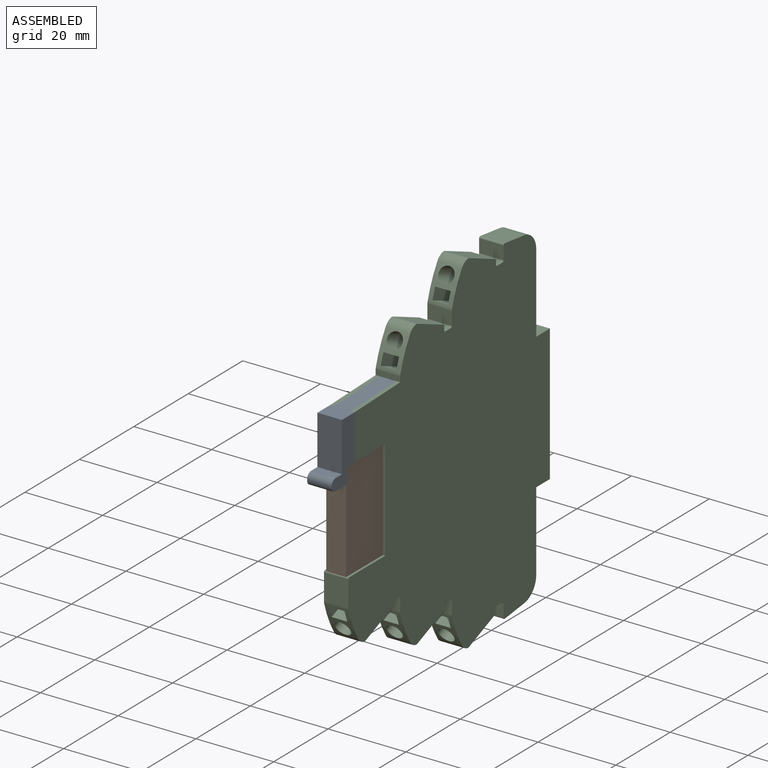
[diagram: assembled view]
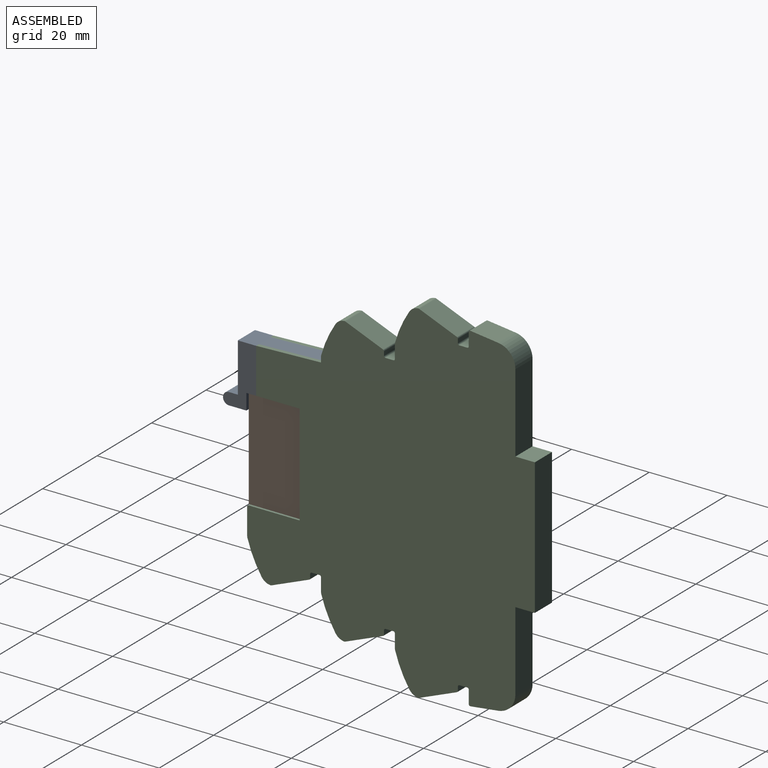
[diagram: assembled view, second angle]
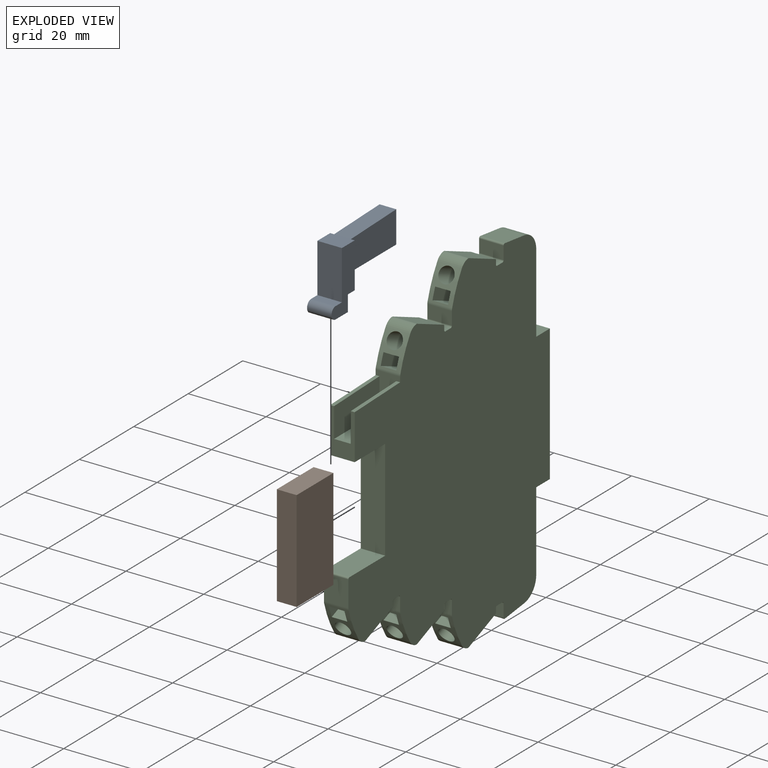
[diagram: exploded view]
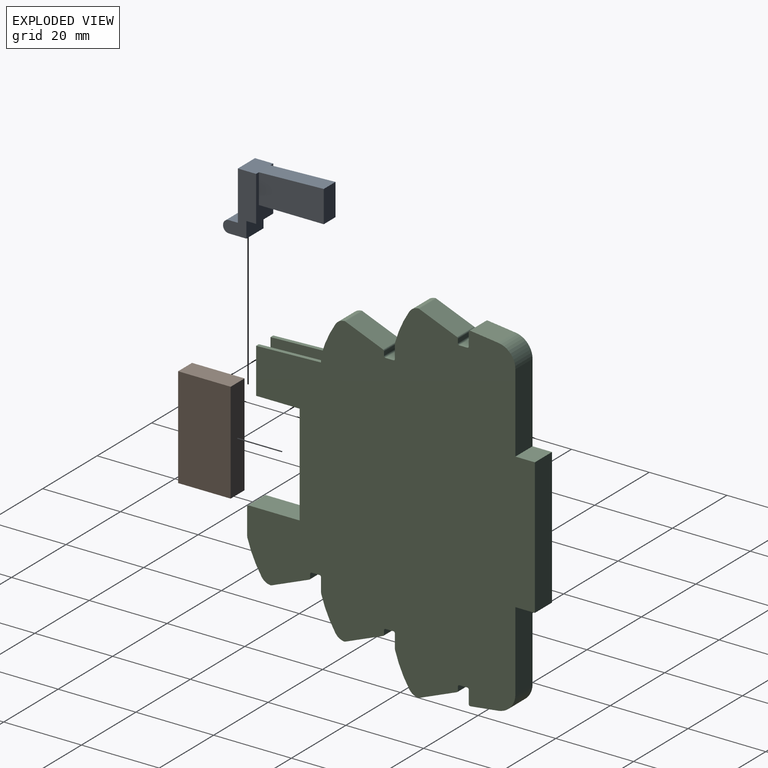
[diagram: exploded view, second angle]
ASSEMBLY  parts=3 mates=2
PART A: 17 faces, bbox 6.3x25.2x16.3 mm
  f0: plane 12.62x6.3mm, normal (0,-1,0), area 79.5mm2, adj f6,f7,f9,f13
  f1: plane 16.7x4.3mm, normal (0,-0.03,1), area 71.9mm2, adj f2,f3,f4,f6
  f2: plane 16.7x8.2mm, normal (1,0,0), area 132.1mm2, adj f1,f3,f5,f10
  f3: plane 8.2x4.3mm, normal (0,1,0), area 35.3mm2, adj f1,f2,f4,f5
  f4: plane 16.7x8.2mm, normal (-1,0,0), area 132.1mm2, adj f1,f3,f5,f10
  f5: plane 16.7x4.3mm, normal (0,0,-1), area 71.8mm2, adj f2,f3,f4,f10
  f6: plane 6.3x4.7mm, normal (0,0,1), area 29.6mm2, adj f0,f1,f7,f9,f10
  f7: plane 15.72x8.5mm, normal (-1,0,0), area 74.4mm2, adj f0,f6,f8,f10,f11,f12,f13,f14
  f8: plane 6.3x2.5mm, normal (0,0,-1), area 15.8mm2, adj f7,f9,f10,f11
  f9: plane 15.72x8.5mm, normal (1,0,0), area 74.4mm2, adj f0,f6,f8,f10,f11,f12,f13,f14
  f10: plane 11.62x6.3mm, normal (0,1,0), area 40.4mm2, adj f2,f4,f5,f6,f7,f8,f9
  f11: plane 6.3x4.1mm, normal (0,1,0), area 25.8mm2, adj f7,f8,f9,f12
  f12: plane 6.3x4.5mm, normal (0,0,-1), area 28.4mm2, adj f7,f9,f11,f15
  f13: plane 6.3x2.3mm, normal (0,0,1), area 14.5mm2, adj f0,f7,f9,f16
  f14: plane 6.3x0.1mm, normal (0,-1,0), area 0.6mm2, adj f7,f9,f15,f16
  f15: cylinder r=1.5mm len=6.3mm, axis (-1,0,0), area 14.8mm2, adj f7,f9,f12,f14
  f16: cylinder r=1.5mm len=6.3mm, axis (1,0,0), area 14.8mm2, adj f7,f9,f13,f14
PART B: 6 faces, bbox 5.1x13.5x26 mm
  f0: plane 26x5.1mm, normal (0,-1,0), area 132.6mm2, adj f1,f3,f4,f5
  f1: plane 13.5x5.1mm, normal (0,0,1), area 68.8mm2, adj f0,f2,f3,f4
  f2: plane 26x5.1mm, normal (0,1,0), area 132.6mm2, adj f1,f3,f4,f5
  f3: plane 26x13.5mm, normal (-1,0,0), area 351mm2, adj f0,f1,f2,f5
  f4: plane 26x13.5mm, normal (1,0,0), area 351mm2, adj f0,f1,f2,f5
  f5: plane 13.5x5.1mm, normal (0,0,-1), area 68.8mm2, adj f0,f2,f3,f4
PART C: 115 faces, bbox 6.3x74x90.5 mm
  f0: cylinder r=30mm len=8.06mm, axis (-1,0,0), area 31.2mm2, adj f10,f38,f39,f73,f108,f110,f111,f112
  f1: cylinder r=30mm len=8.06mm, axis (-1,0,0), area 31.2mm2, adj f10,f38,f44,f70,f101,f103,f104,f105
  f2: cylinder r=30mm len=8.06mm, axis (-1,0,0), area 31.2mm2, adj f10,f38,f45,f69,f94,f96,f97,f98
  f3: plane 16.7x1mm, normal (0,-0.03,1), area 16.7mm2, adj f6,f38,f46,f79
  f4: plane 16.7x1mm, normal (0,-0.03,1), area 16.7mm2, adj f6,f10,f48,f79
  f5: plane 6.3x3.39mm, normal (0,-1,0), area 21.4mm2, adj f10,f38,f51,f71
  f6: plane 9.49x6.3mm, normal (0,-1,0), area 43.4mm2, adj f3,f4,f10,f38,f46,f47,f48,f72
  f7: plane 9.7x6.3mm, normal (0,0.37,-0.93), area 65.9mm2, adj f10,f38,f55,f74
  f8: plane 9.7x6.3mm, normal (0,0.37,-0.93), area 65.9mm2, adj f10,f38,f58,f78
  f9: plane 9.7x6.3mm, normal (0,0.37,-0.93), area 65.9mm2, adj f10,f38,f61,f75
  f10: plane 90.53x74mm, normal (1,0,0), area 4720.7mm2, adj f0,f1,f2,f4,f5,f6,f7,f8
  f11: plane 6.3x2mm, normal (0,0,1), area 12.6mm2, adj f10,f38,f51,f52
  f12: plane 6.3x1.03mm, normal (0,1,0), area 6.5mm2, adj f10,f38,f52,f53
  f13: plane 9.7x6.3mm, normal (0,0.37,0.93), area 65.9mm2, adj f10,f38,f53,f77
  f14: plane 11.2x6.3mm, normal (0,0,-1), area 70.6mm2, adj f10,f15,f38,f79
  f15: plane 26x6.3mm, normal (0,-1,0), area 163.8mm2, adj f10,f14,f16,f38
  f16: plane 13.1x6.3mm, normal (0,0,1), area 82.5mm2, adj f10,f15,f38,f54
  f17: plane 6.69x6.3mm, normal (0,-1,0), area 42.2mm2, adj f10,f38,f54,f69
  f18: plane 6.3x1.03mm, normal (0,1,0), area 6.5mm2, adj f10,f38,f55,f56
  f19: plane 6.3x2mm, normal (0,0,-1), area 12.6mm2, adj f10,f38,f56,f57
  f20: plane 6.3x3.39mm, normal (0,-1,0), area 21.4mm2, adj f10,f38,f57,f73
  f21: plane 6.3x1.03mm, normal (0,1,0), area 6.5mm2, adj f10,f38,f58,f59
  f22: plane 6.3x2mm, normal (0,0,-1), area 12.6mm2, adj f10,f38,f59,f60
  f23: plane 6.3x3.39mm, normal (0,-1,0), area 21.4mm2, adj f10,f38,f60,f70
  f24: plane 6.3x1.03mm, normal (0,1,0), area 6.5mm2, adj f10,f38,f61,f62
  f25: plane 6.3x2mm, normal (0,0,-1), area 12.6mm2, adj f10,f38,f62,f63
  f26: plane 6.3x3.35mm, normal (0,-1,0), area 21.1mm2, adj f10,f38,f63,f64
  f27: plane 7.16x6.3mm, normal (0,0.12,-0.99), area 45.5mm2, adj f10,f38,f49,f64
  f28: plane 20.3x6.3mm, normal (0,1,0), area 127.9mm2, adj f10,f29,f38,f49
  f29: plane 6.3x5mm, normal (0,0,-1), area 31.5mm2, adj f10,f28,f30,f38
  f30: plane 35x6.3mm, normal (0,1,0), area 220.5mm2, adj f10,f29,f31,f38
  f31: plane 6.3x5mm, normal (0,0,1), area 31.5mm2, adj f10,f30,f32,f38
  f32: plane 20.3x6.3mm, normal (0,1,0), area 127.9mm2, adj f10,f31,f38,f50
  f33: plane 7.16x6.3mm, normal (0,0.12,0.99), area 45.5mm2, adj f10,f38,f50,f65
  f34: plane 6.3x3.35mm, normal (0,-1,0), area 21.1mm2, adj f10,f38,f65,f66
  f35: plane 6.3x2mm, normal (0,0,1), area 12.6mm2, adj f10,f38,f66,f67
  f36: plane 6.3x1.03mm, normal (0,1,0), area 6.5mm2, adj f10,f38,f67,f68
  f37: plane 9.7x6.3mm, normal (0,0.37,0.93), area 65.9mm2, adj f10,f38,f68,f76
  f38: plane 90.53x74mm, normal (-1,0,0), area 4720.7mm2, adj f0,f1,f2,f3,f5,f6,f7,f8
  f39: cylinder r=3.01mm len=6.3mm, axis (-1,0,0), area 17.3mm2, adj f0,f10,f38,f78
  f40: cylinder r=3.01mm len=6.3mm, axis (-1,0,0), area 17.3mm2, adj f10,f38,f41,f77
  f41: cylinder r=30mm len=8.06mm, axis (-1,0,0), area 31.2mm2, adj f10,f38,f40,f72,f87,f88,f89,f90
  f42: cylinder r=3.01mm len=6.3mm, axis (-1,0,0), area 17.3mm2, adj f10,f38,f43,f76
  f43: cylinder r=30mm len=8.06mm, axis (-1,0,0), area 31.2mm2, adj f10,f38,f42,f71,f80,f82,f83,f84
  f44: cylinder r=3.01mm len=6.3mm, axis (-1,0,0), area 17.3mm2, adj f1,f10,f38,f75
  f45: cylinder r=3.01mm len=6.3mm, axis (-1,0,0), area 17.3mm2, adj f2,f10,f38,f74
  f46: plane 16.7x8.2mm, normal (1,0,0), area 132.1mm2, adj f3,f6,f47,f79
  f47: plane 16.7x4.3mm, normal (0,0,1), area 71.8mm2, adj f6,f46,f48,f79
  f48: plane 16.7x8.2mm, normal (-1,0,0), area 132.1mm2, adj f4,f6,f47,f79
  f49: cylinder r=5mm len=6.3mm, axis (-1,0,0), area 45.6mm2, adj f10,f27,f28,f38
  f50: cylinder r=5mm len=6.3mm, axis (-1,0,0), area 45.6mm2, adj f10,f32,f33,f38
  f51: cylinder r=0.4mm len=6.3mm, axis (1,0,0), area 4mm2, adj f5,f10,f11,f38
  f52: cylinder r=0.4mm len=6.3mm, axis (1,0,0), area 4mm2, adj f10,f11,f12,f38
  f53: cylinder r=0.4mm len=6.3mm, axis (-1,0,0), area 3mm2, adj f10,f12,f13,f38
  f54: cylinder r=0.4mm len=6.3mm, axis (-1,0,0), area 4mm2, adj f10,f16,f17,f38
  f55: cylinder r=0.4mm len=6.3mm, axis (-1,0,0), area 3mm2, adj f7,f10,f18,f38
  f56: cylinder r=0.4mm len=6.3mm, axis (1,0,0), area 4mm2, adj f10,f18,f19,f38
  f57: cylinder r=0.4mm len=6.3mm, axis (1,0,0), area 4mm2, adj f10,f19,f20,f38
  f58: cylinder r=0.4mm len=6.3mm, axis (-1,0,0), area 3mm2, adj f8,f10,f21,f38
  f59: cylinder r=0.4mm len=6.3mm, axis (1,0,0), area 4mm2, adj f10,f21,f22,f38
  f60: cylinder r=0.4mm len=6.3mm, axis (1,0,0), area 4mm2, adj f10,f22,f23,f38
  f61: cylinder r=0.4mm len=6.3mm, axis (-1,0,0), area 3mm2, adj f9,f10,f24,f38
  f62: cylinder r=0.4mm len=6.3mm, axis (1,0,0), area 4mm2, adj f10,f24,f25,f38
  f63: cylinder r=0.4mm len=6.3mm, axis (1,0,0), area 4mm2, adj f10,f25,f26,f38
  f64: cylinder r=0.4mm len=6.3mm, axis (-1,0,0), area 4.3mm2, adj f10,f26,f27,f38
  f65: cylinder r=0.4mm len=6.3mm, axis (-1,0,0), area 4.3mm2, adj f10,f33,f34,f38
  f66: cylinder r=0.4mm len=6.3mm, axis (1,0,0), area 4mm2, adj f10,f34,f35,f38
  f67: cylinder r=0.4mm len=6.3mm, axis (-1,0,0), area 4mm2, adj f10,f35,f36,f38
  f68: cylinder r=0.4mm len=6.3mm, axis (-1,0,0), area 3mm2, adj f10,f36,f37,f38
  f69: cylinder r=2mm len=6.3mm, axis (-1,0,0), area 3.5mm2, adj f2,f10,f17,f38
  f70: cylinder r=2mm len=6.3mm, axis (-1,0,0), area 3.5mm2, adj f1,f10,f23,f38
  f71: cylinder r=2mm len=6.3mm, axis (-1,0,0), area 3.5mm2, adj f5,f10,f38,f43
  f72: cylinder r=2mm len=6.3mm, axis (-1,0,0), area 3.5mm2, adj f6,f10,f38,f41
  f73: cylinder r=2mm len=6.3mm, axis (-1,0,0), area 3.5mm2, adj f0,f10,f20,f38
  f74: cylinder r=0.6mm len=6.3mm, axis (-1,0,0), area 1.8mm2, adj f7,f10,f38,f45
  f75: cylinder r=0.6mm len=6.3mm, axis (-1,0,0), area 1.8mm2, adj f9,f10,f38,f44
  f76: cylinder r=0.6mm len=6.3mm, axis (-1,0,0), area 1.8mm2, adj f10,f37,f38,f42
  f77: cylinder r=0.6mm len=6.3mm, axis (-1,0,0), area 1.8mm2, adj f10,f13,f38,f40
  f78: cylinder r=0.6mm len=6.3mm, axis (-1,0,0), area 1.8mm2, adj f8,f10,f38,f39
  f79: plane 11.62x6.3mm, normal (0,-1,0), area 40.4mm2, adj f3,f4,f10,f14,f38,f46,f47,f48
  f80: cylinder r=2mm len=27.22mm, axis (0,-0.93,0.37), area 346.2mm2, adj f43,f81
  f81: plane 4x3.71mm, normal (0,-0.93,0.37), area 12.6mm2, adj f80
  f82: plane 26.75x13.18mm, normal (-1,0,0), area 83.2mm2, adj f43,f83,f85,f86
  f83: plane 25.74x10.4mm, normal (0,-0.37,-0.93), area 111mm2, adj f43,f82,f84,f86
  f84: plane 26.75x13.18mm, normal (1,0,0), area 83.2mm2, adj f43,f83,f85,f86
  f85: plane 25.62x10.35mm, normal (0,0.37,0.93), area 110.5mm2, adj f43,f82,f84,f86
  f86: plane 4x2.78mm, normal (0,-0.93,0.37), area 12mm2, adj f82,f83,f84,f85
  f87: plane 40.3x18.66mm, normal (-1,0,0), area 127mm2, adj f41,f88,f90,f91
  f88: plane 39.3x15.88mm, normal (0,-0.37,-0.93), area 169.5mm2, adj f41,f87,f89,f91
  f89: plane 40.3x18.66mm, normal (1,0,0), area 127mm2, adj f41,f88,f90,f91
  f90: plane 39.18x15.83mm, normal (0,0.37,0.93), area 169mm2, adj f41,f87,f89,f91
  f91: plane 4x2.78mm, normal (0,-0.93,0.37), area 12mm2, adj f87,f88,f89,f90
  f92: cylinder r=2mm len=40.77mm, axis (0,-0.93,0.37), area 530mm2, adj f41,f93
  f93: plane 4x3.71mm, normal (0,-0.93,0.37), area 12.6mm2, adj f92
  f94: cylinder r=2mm len=54.33mm, axis (0,-0.93,-0.37), area 713.7mm2, adj f2,f95
  f95: plane 4x3.71mm, normal (0,-0.93,-0.37), area 12.6mm2, adj f94
  f96: plane 52.73x21.31mm, normal (0,0.37,-0.93), area 227.5mm2, adj f2,f97,f99,f100
  f97: plane 53.86x24.13mm, normal (-1,0,0), area 170.9mm2, adj f2,f96,f98,f100
  f98: plane 52.85x21.35mm, normal (0,-0.37,0.93), area 228mm2, adj f2,f97,f99,f100
  f99: plane 53.86x24.13mm, normal (1,0,0), area 170.9mm2, adj f2,f96,f98,f100
  f100: plane 4x2.78mm, normal (0,-0.93,-0.37), area 12mm2, adj f96,f97,f98,f99
  f101: cylinder r=2mm len=27.22mm, axis (0,-0.93,-0.37), area 346.2mm2, adj f1,f102
  f102: plane 4x3.71mm, normal (0,-0.93,-0.37), area 12.6mm2, adj f101
  f103: plane 25.62x10.35mm, normal (0,0.37,-0.93), area 110.5mm2, adj f1,f104,f106,f107
  f104: plane 26.75x13.18mm, normal (-1,0,0), area 83.2mm2, adj f1,f103,f105,f107
  f105: plane 25.74x10.4mm, normal (0,-0.37,0.93), area 111mm2, adj f1,f104,f106,f107
  f106: plane 26.75x13.18mm, normal (1,0,0), area 83.2mm2, adj f1,f103,f105,f107
  f107: plane 4x2.78mm, normal (0,-0.93,-0.37), area 12mm2, adj f103,f104,f105,f106
  f108: cylinder r=2mm len=40.77mm, axis (0,-0.93,-0.37), area 530mm2, adj f0,f109
  f109: plane 4x3.71mm, normal (0,-0.93,-0.37), area 12.6mm2, adj f108
  f110: plane 39.18x15.83mm, normal (0,0.37,-0.93), area 169mm2, adj f0,f111,f113,f114
  f111: plane 40.3x18.66mm, normal (-1,0,0), area 127mm2, adj f0,f110,f112,f114
  f112: plane 39.3x15.88mm, normal (0,-0.37,0.93), area 169.5mm2, adj f0,f111,f113,f114
  f113: plane 40.3x18.66mm, normal (1,0,0), area 127mm2, adj f0,f110,f112,f114
  f114: plane 4x2.78mm, normal (0,-0.93,-0.37), area 12mm2, adj f110,f111,f112,f113
PLACE A t=(-3.08,36.88,-0.25)mm
PLACE B t=(-3.08,36.88,-0.25)mm
PLACE C t=(-3.08,36.88,-0.25)mm
MATE fastened A.f5 <-> C.f47  axis (0,0,-1) through (0.07,-26.47,17.55)mm
MATE fastened B.f2 <-> C.f15  axis (0,1,0) through (0.07,-23.62,0.55)mm
